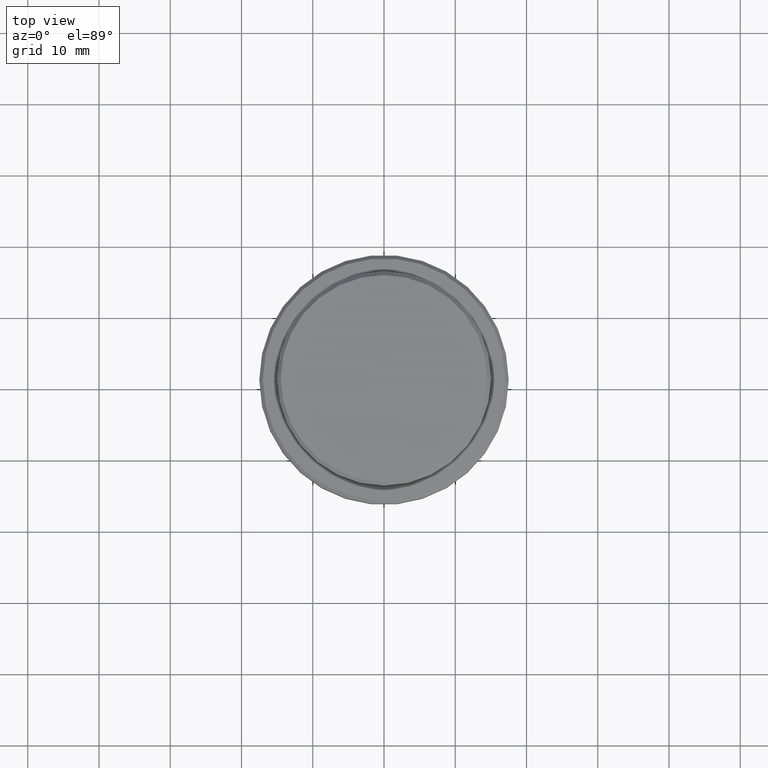
[diagram: clean part render]
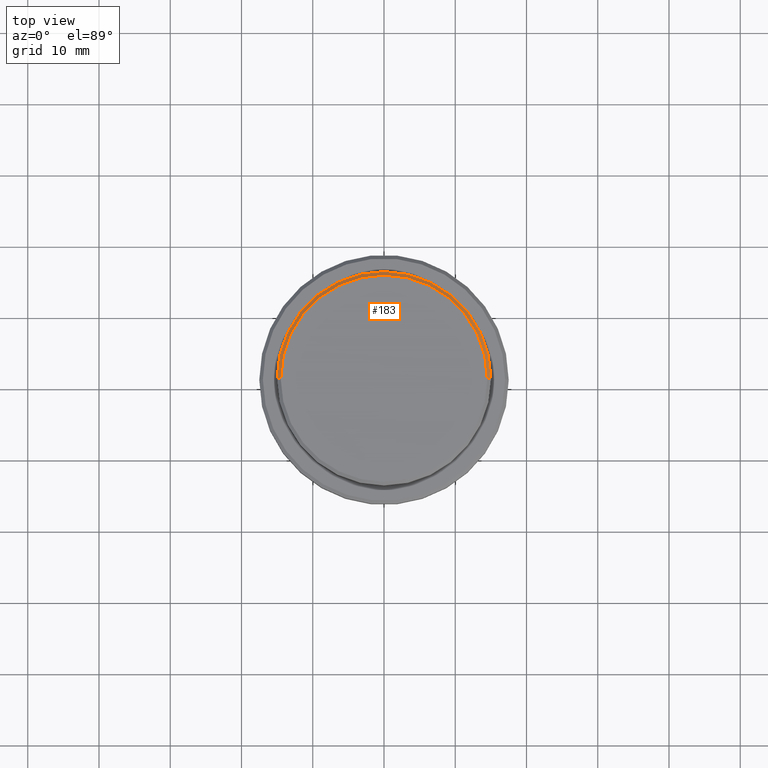
[diagram: same view with one face highlighted and labeled with its STEP entity id]
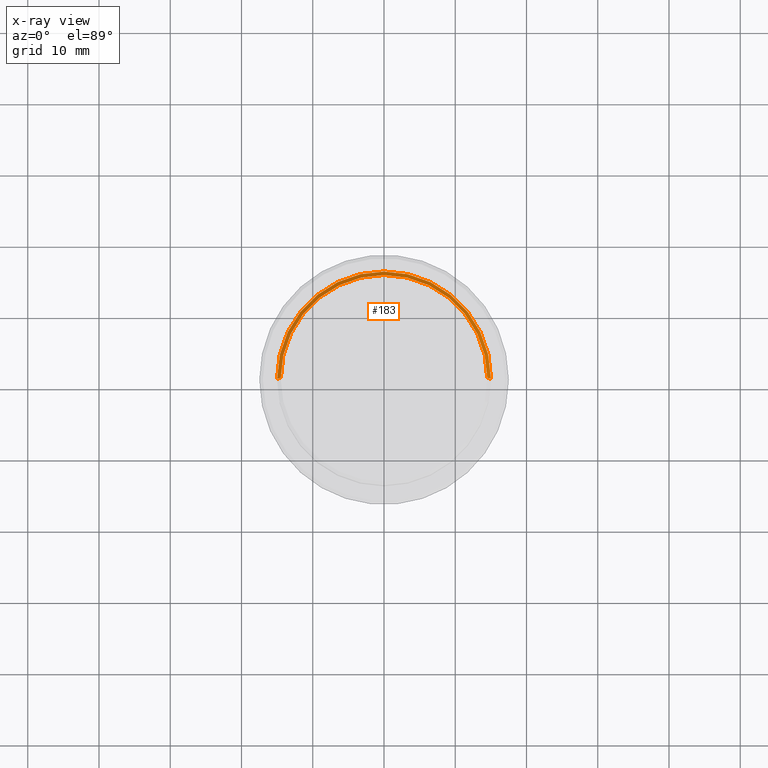
[diagram: x-ray of the same camera — body ghosted, the highlighted face saturated]
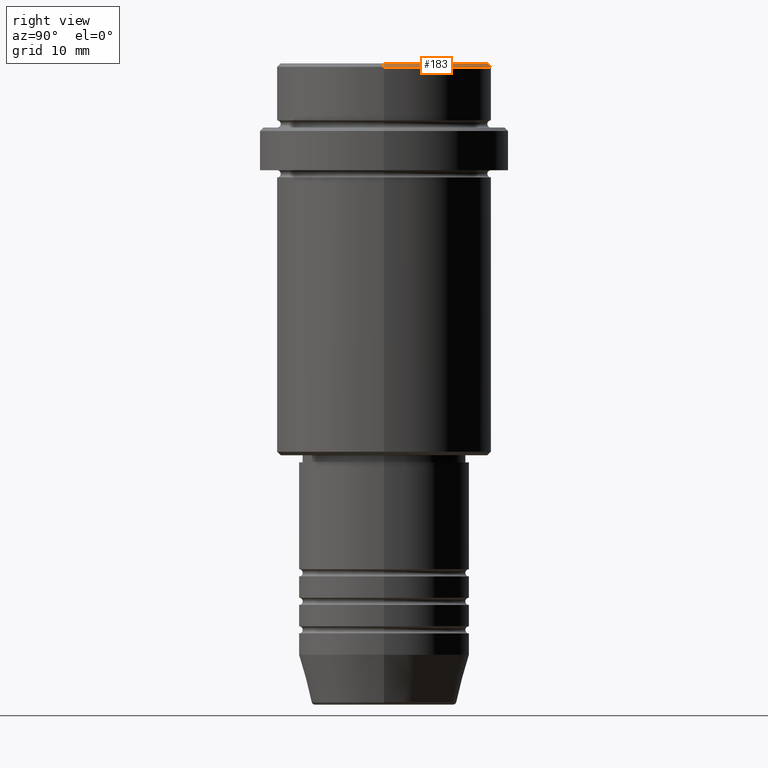
[diagram: same view with one face highlighted and labeled with its STEP entity id]
A machine part, top view. The second image highlights one B-rep face of the part: STEP entity #183.
The next image is the same camera in x-ray: the body ghosted, the highlighted face saturated — about 0% of this face is hidden behind the body in this view.
A second angle (right view) of the same face is appended — the face is thin or edge-on in the first view.
In plain terms, the highlighted conical surface has half-angle 45 deg.
Its self-contained STEP definition (entity closure, byte-faithful):
#183 = ADVANCED_FACE ( 'NONE', ( #379 ), #1138, .T. ) ;
#191 = CARTESIAN_POINT ( 'NONE',  ( 0.000000000000000000, 0.000000000000000000, 0.000000000000000000 ) ) ;
#198 = EDGE_CURVE ( 'NONE', #536, #387, #977, .T. ) ;
#223 = AXIS2_PLACEMENT_3D ( 'NONE', #933, #1274, #812 ) ;
#379 = FACE_OUTER_BOUND ( 'NONE', #553, .T. ) ;
#387 = VERTEX_POINT ( 'NONE', #723 ) ;
#491 = DIRECTION ( 'NONE',  ( 0.7071067811865512365, 8.659560562354979697E-17, -0.7071067811865439090 ) ) ;
#507 = DIRECTION ( 'NONE',  ( -0.7071067811865512365, 0.000000000000000000, -0.7071067811865439090 ) ) ;
#536 = VERTEX_POINT ( 'NONE', #1060 ) ;
#541 = EDGE_CURVE ( 'NONE', #387, #1308, #1257, .T. ) ;
#546 = CARTESIAN_POINT ( 'NONE',  ( 15.00000000000000000, 0.000000000000000000, -0.4999999999999831246 ) ) ;
#553 = EDGE_LOOP ( 'NONE', ( #575, #1210, #1417, #645 ) ) ;
#575 = ORIENTED_EDGE ( 'NONE', *, *, #198, .F. ) ;
#585 = AXIS2_PLACEMENT_3D ( 'NONE', #829, #950, #1388 ) ;
#621 = AXIS2_PLACEMENT_3D ( 'NONE', #191, #1003, #1103 ) ;
#645 = ORIENTED_EDGE ( 'NONE', *, *, #541, .F. ) ;
#667 = VECTOR ( 'NONE', #491, 1000.000000000000000 ) ;
#691 = CIRCLE ( 'NONE', #585, 15.00000000000000000 ) ;
#723 = CARTESIAN_POINT ( 'NONE',  ( -14.50000000000001066, 0.000000000000000000, 0.000000000000000000 ) ) ;
#812 = DIRECTION ( 'NONE',  ( -1.000000000000000000, 0.000000000000000000, 0.000000000000000000 ) ) ;
#829 = CARTESIAN_POINT ( 'NONE',  ( 0.000000000000000000, 0.000000000000000000, -0.4999999999999831246 ) ) ;
#908 = VECTOR ( 'NONE', #507, 1000.000000000000000 ) ;
#933 = CARTESIAN_POINT ( 'NONE',  ( 0.000000000000000000, 0.000000000000000000, 0.000000000000000000 ) ) ;
#944 = LINE ( 'NONE', #1377, #667 ) ;
#950 = DIRECTION ( 'NONE',  ( 0.000000000000000000, 0.000000000000000000, -1.000000000000000000 ) ) ;
#977 = CIRCLE ( 'NONE', #621, 14.50000000000001066 ) ;
#1003 = DIRECTION ( 'NONE',  ( -0.000000000000000000, -0.000000000000000000, 1.000000000000000000 ) ) ;
#1015 = EDGE_CURVE ( 'NONE', #1308, #1194, #691, .T. ) ;
#1060 = CARTESIAN_POINT ( 'NONE',  ( 14.50000000000001066, 1.806354028742346591E-15, 0.000000000000000000 ) ) ;
#1103 = DIRECTION ( 'NONE',  ( 1.000000000000000000, 0.000000000000000000, 0.000000000000000000 ) ) ;
#1138 = CONICAL_SURFACE ( 'NONE', #223, 14.50000000000001066, 0.7853981633974533860 ) ;
#1169 = EDGE_CURVE ( 'NONE', #536, #1194, #944, .T. ) ;
#1194 = VERTEX_POINT ( 'NONE', #546 ) ;
#1210 = ORIENTED_EDGE ( 'NONE', *, *, #1169, .T. ) ;
#1230 = CARTESIAN_POINT ( 'NONE',  ( -15.00000000000000000, 1.836970198721029589E-15, -0.4999999999999831246 ) ) ;
#1257 = LINE ( 'NONE', #1373, #908 ) ;
#1274 = DIRECTION ( 'NONE',  ( 0.000000000000000000, 0.000000000000000000, -1.000000000000000000 ) ) ;
#1308 = VERTEX_POINT ( 'NONE', #1230 ) ;
#1373 = CARTESIAN_POINT ( 'NONE',  ( -14.50000000000001066, 0.000000000000000000, 0.000000000000000000 ) ) ;
#1377 = CARTESIAN_POINT ( 'NONE',  ( 14.50000000000001066, 1.775737858763663593E-15, 0.000000000000000000 ) ) ;
#1388 = DIRECTION ( 'NONE',  ( 1.000000000000000000, 0.000000000000000000, 0.000000000000000000 ) ) ;
#1417 = ORIENTED_EDGE ( 'NONE', *, *, #1015, .F. ) ;